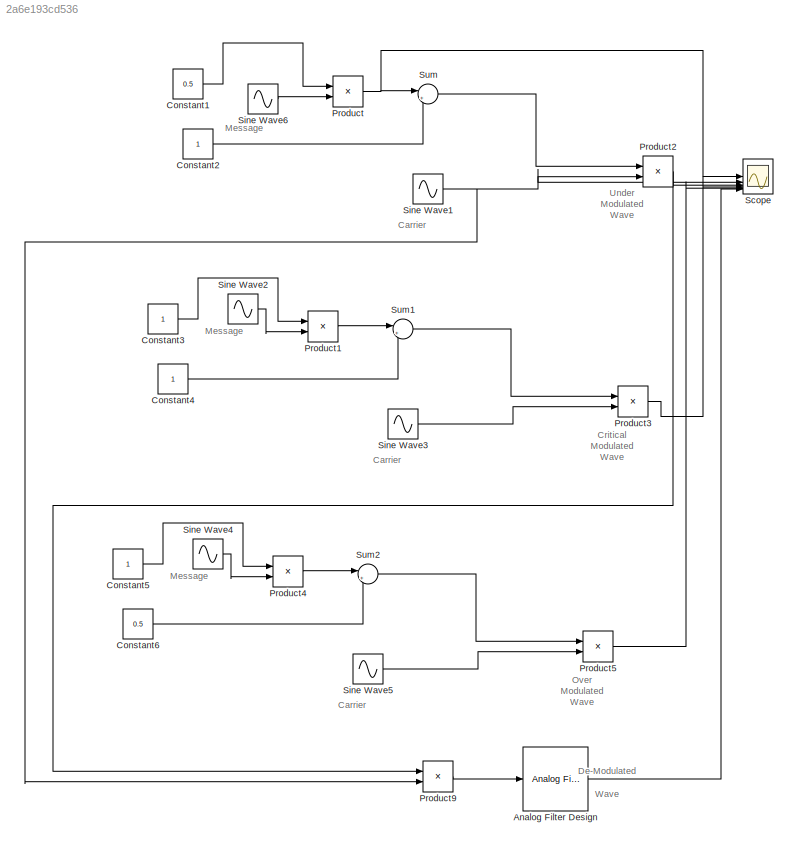
MODEL slx_2a6e193cd536
KIND model
CONFIG AbsTol = auto
CONFIG EnableMultiTasking = off
CONFIG FixedStep = auto
CONFIG MaxStep = auto
CONFIG MinStep = auto
CONFIG RelTol = 1e-3
CONFIG SampleTimeConstraint = Unconstrained
CONFIG SolverName = VariableStepAuto
CONFIG StartTime = 0.0
CONFIG StopTime = 10.0
BLOCK [Reference] Analog Filter Design  REF=dspfdesign/Analog
Filter Design
  SourceBlock = dspfdesign/Analog\nFilter Design
  SourceType = Analog Filter Design
BLOCK [Constant] Constant1
  Value = 0.5
BLOCK [Constant] Constant2
BLOCK [Constant] Constant3
BLOCK [Constant] Constant4
BLOCK [Constant] Constant5
BLOCK [Constant] Constant6
  Value = 0.5
BLOCK [Product] Product
BLOCK [Product] Product1
BLOCK [Product] Product2
BLOCK [Product] Product3
BLOCK [Product] Product4
BLOCK [Product] Product5
BLOCK [Product] Product9
BLOCK [Scope] Scope
  Floating = off
  NumInputPorts = 6
  ScopeSpecificationString = Simulink.scopes.TimeScopeBlockCfg('CurrentConfiguration', extmgr.ConfigurationSet(extmgr.Configuration('Core','General UI',true,'FigureColor',[1 1 1]),extmgr.Configuration('Core','Source UI',true),extmgr.Configuration('Sources','WiredSimulink',true),extmgr.Configuration('Visuals','Time Domain',true,'SerializedDisplays',{struct('MinYLimReal','-0.625','MaxYLimReal','0.625','YLabelReal','','MinYLimMa...<+5906ch>
BLOCK [Sin] Sine Wave1
  Frequency = 2*pi*10
  SampleTime = 1/1000
BLOCK [Sin] Sine Wave2
  Frequency = 2*pi*1
  SampleTime = 1/1000
BLOCK [Sin] Sine Wave3
  Frequency = 2*pi*10
  SampleTime = 1/1000
BLOCK [Sin] Sine Wave4
  Frequency = 2*pi*1
  SampleTime = 1/1000
BLOCK [Sin] Sine Wave5
  Frequency = 2*pi*10
  SampleTime = 1/1000
BLOCK [Sin] Sine Wave6
  Frequency = 2*pi*1
  SampleTime = 1/1000
BLOCK [Sum] Sum
  Inputs = |++
BLOCK [Sum] Sum1
  Inputs = |++
BLOCK [Sum] Sum2
  Inputs = |++
ANNOTATION (root): Carrier
ANNOTATION (root): Critical Modulated Wave
ANNOTATION (root): De-Modulated Wave
ANNOTATION (root): Message
ANNOTATION (root): Over Modulated Wave
ANNOTATION (root): Under Modulated Wave
LINE Analog Filter Design:1 -> Scope:6
LINE Constant1:1 -> Product:1
LINE Constant2:1 -> Sum:2
LINE Constant3:1 -> Product1:1
LINE Constant4:1 -> Sum1:2
LINE Constant5:1 -> Product4:1
LINE Constant6:1 -> Sum2:2
LINE Product1:1 -> Sum1:1
NET Product2:1 -> Product9:1, Scope:3
LINE Product3:1 -> Scope:4
LINE Product4:1 -> Sum2:1
LINE Product5:1 -> Scope:5
LINE Product9:1 -> Analog Filter Design:1
NET Product:1 -> Scope:1, Sum:1
NET Sine Wave1:1 -> Product2:2, Product9:2, Scope:2
LINE Sine Wave2:1 -> Product1:2
LINE Sine Wave3:1 -> Product3:2
LINE Sine Wave4:1 -> Product4:2
LINE Sine Wave5:1 -> Product5:2
LINE Sine Wave6:1 -> Product:2
LINE Sum1:1 -> Product3:1
LINE Sum2:1 -> Product5:1
LINE Sum:1 -> Product2:1
note: NET lines group one-source signal fan-out (src -> all destinations, sorted); 1:1 wires keep LINE
